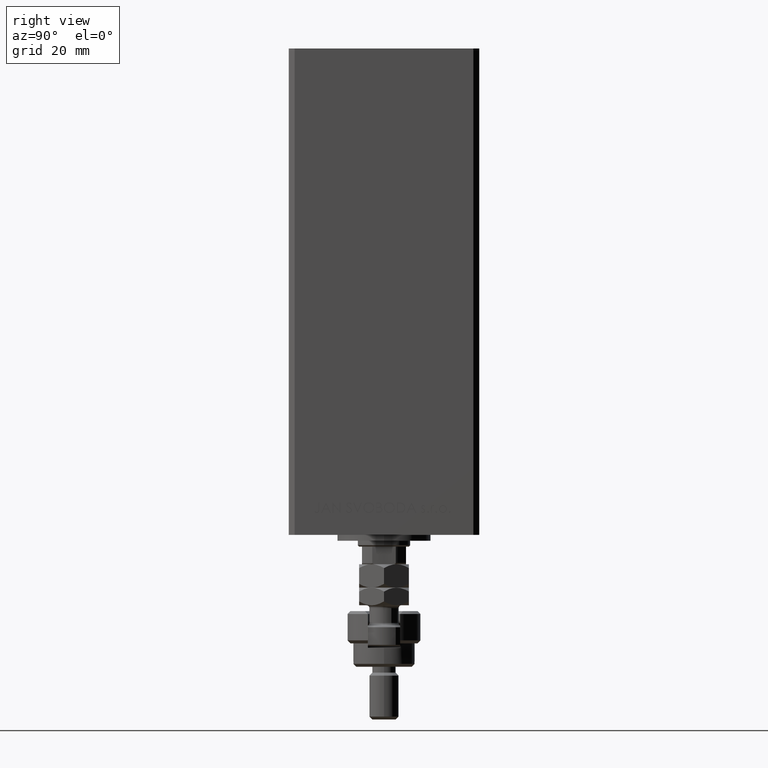
[diagram: clean part render]
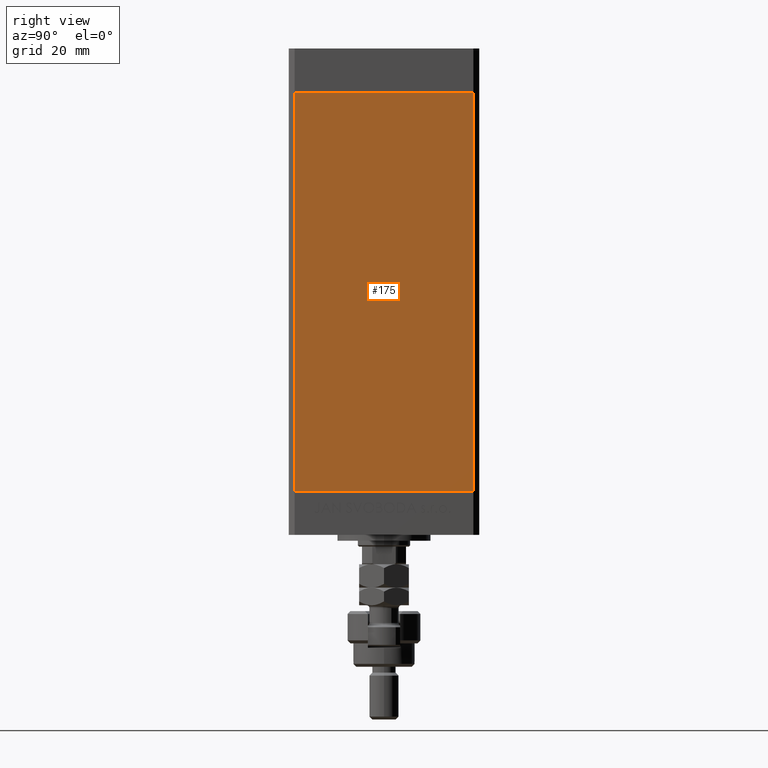
[diagram: same view with one face highlighted and labeled with its STEP entity id]
A machine part, right view. The second image highlights one B-rep face of the part: STEP entity #175.
In plain terms, the highlighted planar face has unit normal (1, -0, 0).
Its self-contained STEP definition (entity closure, byte-faithful):
#175 = ADVANCED_FACE ( 'NONE', ( #31060 ), #52285, .T. ) ;
#500 = CARTESIAN_POINT ( 'NONE',  ( 37.50000000000000711, 30.50000000000000000, 0.000000000000000000 ) ) ;
#822 = EDGE_CURVE ( 'NONE', #17859, #46530, #21650, .T. ) ;
#1771 = LINE ( 'NONE', #17714, #11262 ) ;
#2725 = ORIENTED_EDGE ( 'NONE', *, *, #50298, .F. ) ;
#3728 = DIRECTION ( 'NONE',  ( -2.275047181608927644E-16, -1.000000000000000000, 0.000000000000000000 ) ) ;
#4574 = VECTOR ( 'NONE', #15967, 1000.000000000000000 ) ;
#5256 = CARTESIAN_POINT ( 'NONE',  ( 37.49999999999999289, -30.50000000000000000, 0.000000000000000000 ) ) ;
#7699 = LINE ( 'NONE', #23903, #8960 ) ;
#8960 = VECTOR ( 'NONE', #3728, 1000.000000000000000 ) ;
#10640 = CARTESIAN_POINT ( 'NONE',  ( 37.50000000000000711, 30.50000000000000000, 0.000000000000000000 ) ) ;
#11262 = VECTOR ( 'NONE', #17963, 1000.000000000000000 ) ;
#13129 = VECTOR ( 'NONE', #37834, 1000.000000000000000 ) ;
#15967 = DIRECTION ( 'NONE',  ( -2.275047181608927644E-16, -1.000000000000000000, 0.000000000000000000 ) ) ;
#17714 = CARTESIAN_POINT ( 'NONE',  ( 37.49999999999999289, -30.50000000000000000, 136.0000000000000000 ) ) ;
#17859 = VERTEX_POINT ( 'NONE', #41382 ) ;
#17963 = DIRECTION ( 'NONE',  ( -0.000000000000000000, -0.000000000000000000, -1.000000000000000000 ) ) ;
#18214 = AXIS2_PLACEMENT_3D ( 'NONE', #47263, #23895, #43278 ) ;
#19722 = ORIENTED_EDGE ( 'NONE', *, *, #822, .F. ) ;
#20030 = EDGE_CURVE ( 'NONE', #49124, #34153, #1771, .T. ) ;
#20627 = ORIENTED_EDGE ( 'NONE', *, *, #31276, .T. ) ;
#21092 = CARTESIAN_POINT ( 'NONE',  ( 37.49999999999999289, -30.50000000000000000, 136.0000000000000000 ) ) ;
#21650 = LINE ( 'NONE', #38100, #13129 ) ;
#23895 = DIRECTION ( 'NONE',  ( 1.000000000000000000, -2.275047181608927644E-16, 0.000000000000000000 ) ) ;
#23903 = CARTESIAN_POINT ( 'NONE',  ( 37.50000000000000711, 30.50000000000000000, 136.0000000000000000 ) ) ;
#24546 = ORIENTED_EDGE ( 'NONE', *, *, #20030, .T. ) ;
#31060 = FACE_OUTER_BOUND ( 'NONE', #43653, .T. ) ;
#31276 = EDGE_CURVE ( 'NONE', #17859, #49124, #7699, .T. ) ;
#32151 = LINE ( 'NONE', #10640, #4574 ) ;
#34153 = VERTEX_POINT ( 'NONE', #5256 ) ;
#37834 = DIRECTION ( 'NONE',  ( -0.000000000000000000, -0.000000000000000000, -1.000000000000000000 ) ) ;
#38100 = CARTESIAN_POINT ( 'NONE',  ( 37.50000000000000711, 30.50000000000000000, 136.0000000000000000 ) ) ;
#41382 = CARTESIAN_POINT ( 'NONE',  ( 37.50000000000000711, 30.50000000000000000, 136.0000000000000000 ) ) ;
#43278 = DIRECTION ( 'NONE',  ( 2.275047181608927644E-16, 1.000000000000000000, 0.000000000000000000 ) ) ;
#43653 = EDGE_LOOP ( 'NONE', ( #2725, #19722, #20627, #24546 ) ) ;
#46530 = VERTEX_POINT ( 'NONE', #500 ) ;
#47263 = CARTESIAN_POINT ( 'NONE',  ( 37.50000000000000711, 30.50000000000000000, 136.0000000000000000 ) ) ;
#49124 = VERTEX_POINT ( 'NONE', #21092 ) ;
#50298 = EDGE_CURVE ( 'NONE', #46530, #34153, #32151, .T. ) ;
#52285 = PLANE ( 'NONE',  #18214 ) ;